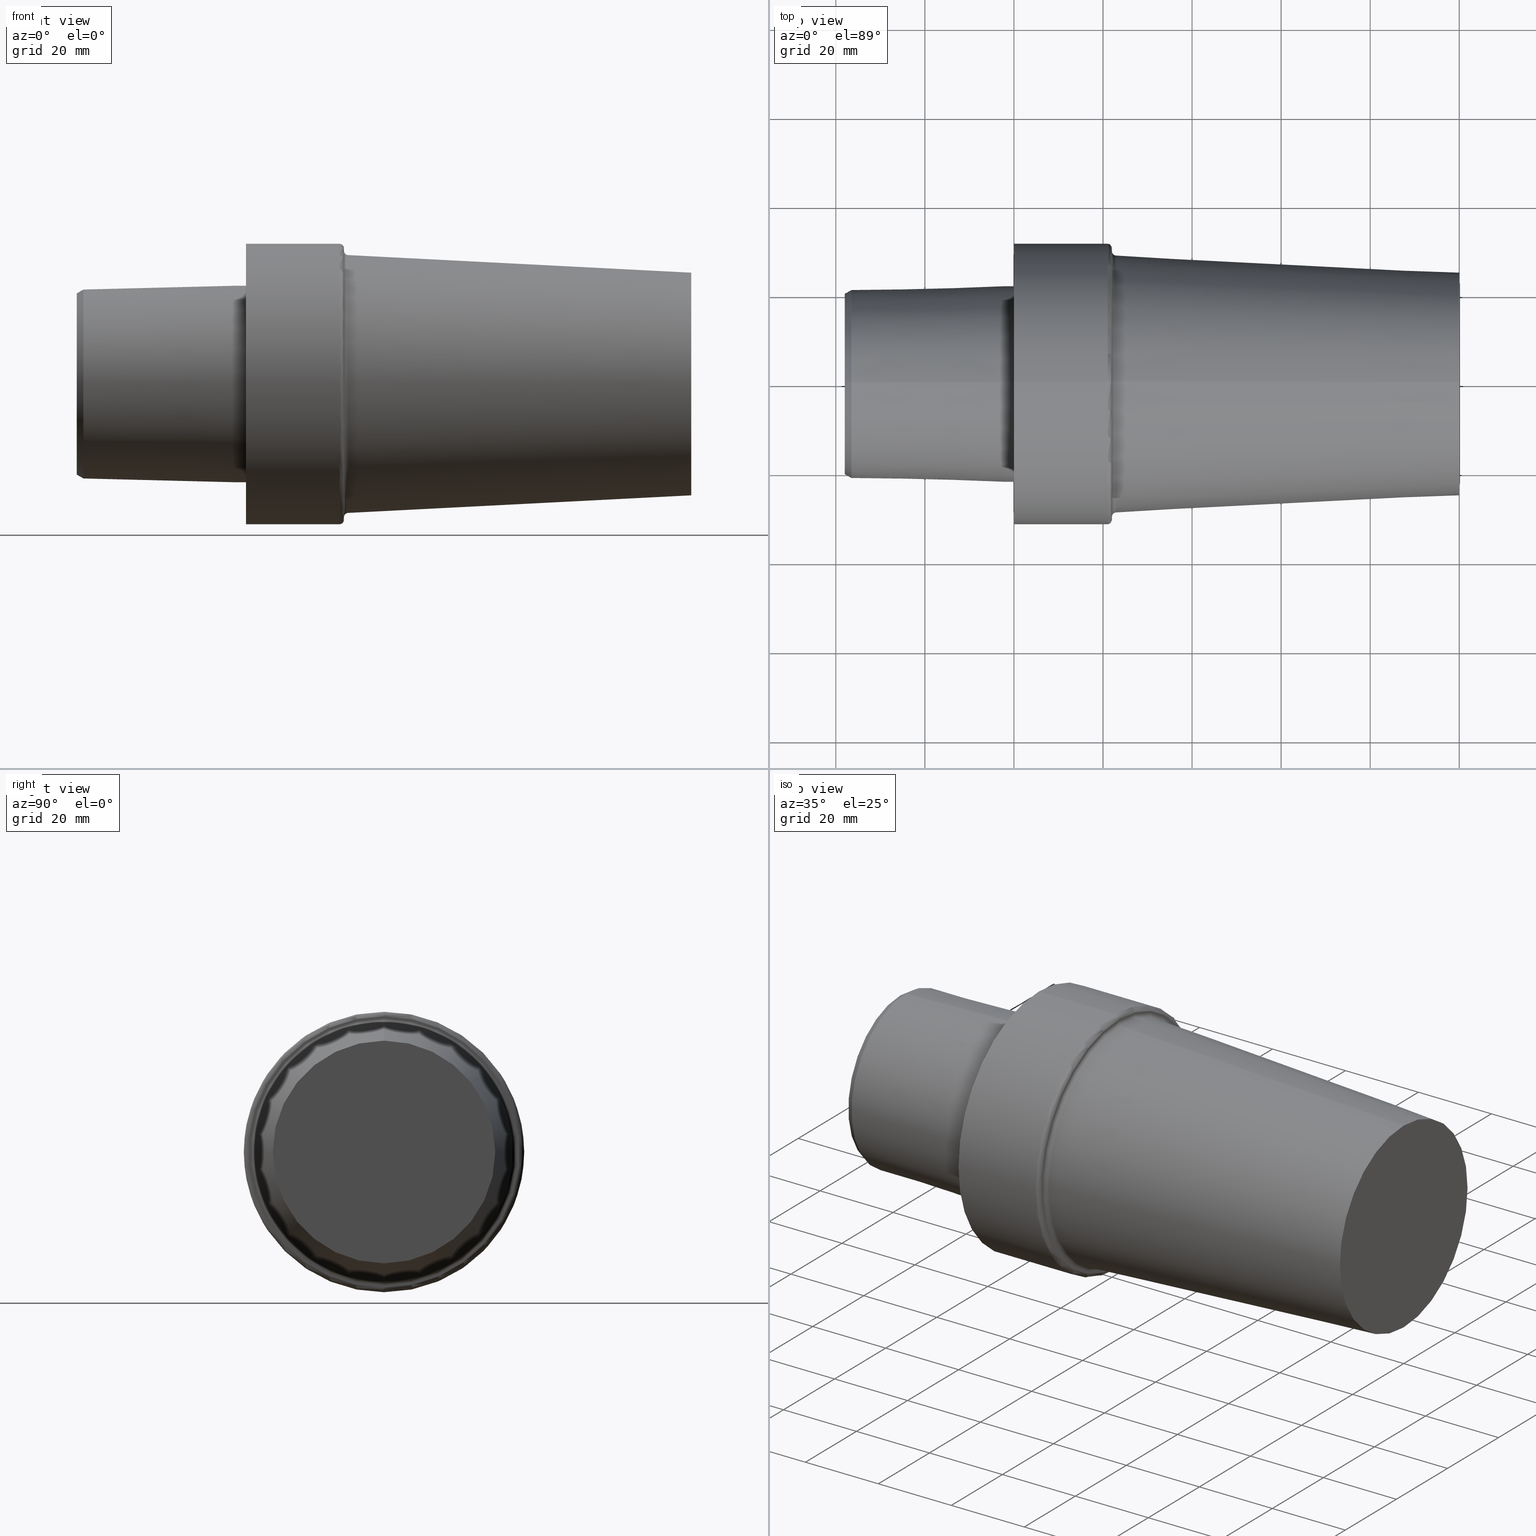
[diagram: canonical four-view strip — front | top / right | iso, engineering-drawing reading convention]
A machine part, canonical four-view strip (front | top / right | iso — engineering-drawing reading convention). The complete STEP part file that produces these views, byte-faithful:
ISO-10303-21;
HEADER;
FILE_DESCRIPTION (( 'STEP AP203' ),
    '1' );
FILE_NAME ('C6-S50-100.stp',
    '2022-03-11T15:34:15',
    ( '' ),
    ( '' ),
    'SwSTEP 2.0',
    'SolidWorks 2021',
    '' );
FILE_SCHEMA (( 'CONFIG_CONTROL_DESIGN' ));
ENDSEC;

DATA;
#1 = DIRECTION ( 'NONE',  ( -0.9986876634740388115, 6.271998213394407980E-18, -0.05121475202287888856 ) ) ;
#2 = CC_DESIGN_DATE_AND_TIME_ASSIGNMENT ( #330, #40, ( #195 ) ) ;
#3 = DIRECTION ( 'NONE',  ( -1.000000000000000000, 0.000000000000000000, 0.000000000000000000 ) ) ;
#4 = SHAPE_DEFINITION_REPRESENTATION ( #403, #454 ) ;
#5 = CARTESIAN_POINT ( 'NONE',  ( -2.199999999394708361, 2.702891790757786195E-15, 22.07078639032614120 ) ) ;
#6 = CALENDAR_DATE ( 2022, 11, 3 ) ;
#7 = FACE_OUTER_BOUND ( 'NONE', #313, .T. ) ;
#8 = CARTESIAN_POINT ( 'NONE',  ( -36.49999996440870120, 2.597885383028215483E-15, 21.21334400120073482 ) ) ;
#9 = CIRCLE ( 'NONE', #79, 22.07078639032614120 ) ;
#10 = VECTOR ( 'NONE', #336, 1000.000000000000114 ) ;
#11 = AXIS2_PLACEMENT_3D ( 'NONE', #304, #143, #481 ) ;
#12 = CARTESIAN_POINT ( 'NONE',  ( 20.99999997694130016, 0.000000000000000000, 31.49249997071599338 ) ) ;
#13 = DIRECTION ( 'NONE',  ( 0.000000000000000000, 0.000000000000000000, 1.000000000000000000 ) ) ;
#14 = LOCAL_TIME ( 9, 34, 15.00000000000000000, #447 ) ;
#15 = DIRECTION ( 'NONE',  ( -1.000000000000000000, 0.000000000000000000, 0.000000000000000000 ) ) ;
#16 = EDGE_LOOP ( 'NONE', ( #124, #269 ) ) ;
#17 = CARTESIAN_POINT ( 'NONE',  ( -1.638711037459195739E-09, 0.000000000000000000, 0.000000000000000000 ) ) ;
#18 = DIRECTION ( 'NONE',  ( 0.000000000000000000, 0.000000000000000000, -1.000000000000000000 ) ) ;
#19 = ORIENTED_EDGE ( 'NONE', *, *, #86, .T. ) ;
#20 =( GEOMETRIC_REPRESENTATION_CONTEXT ( 3 ) GLOBAL_UNCERTAINTY_ASSIGNED_CONTEXT ( ( #298 ) ) GLOBAL_UNIT_ASSIGNED_CONTEXT ( ( #263, #28, #407 ) ) REPRESENTATION_CONTEXT ( 'NONE', 'WORKASPACE' ) );
#21 = EDGE_CURVE ( 'NONE', #157, #488, #273, .T. ) ;
#22 = FACE_OUTER_BOUND ( 'NONE', #159, .T. ) ;
#23 = CARTESIAN_POINT ( 'NONE',  ( 22.99999997490129999, 0.000000000000000000, 29.95003198586706716 ) ) ;
#24 = CIRCLE ( 'NONE', #217, 0.9999999989800008038 ) ;
#25 = EDGE_LOOP ( 'NONE', ( #458, #135, #174, #68 ) ) ;
#26 = CARTESIAN_POINT ( 'NONE',  ( 99.99999989636121711, 0.000000000000000000, 0.000000000000000000 ) ) ;
#27 = ORIENTED_EDGE ( 'NONE', *, *, #278, .F. ) ;
#28 =( NAMED_UNIT ( * ) PLANE_ANGLE_UNIT ( ) SI_UNIT ( $, .RADIAN. ) );
#29 = VERTEX_POINT ( 'NONE', #107 ) ;
#30 = CIRCLE ( 'NONE', #281, 0.9999999989800008038 ) ;
#31 = CONICAL_SURFACE ( 'NONE', #121, 24.99999997733834434, 0.05123716745320494592 ) ;
#32 = ADVANCED_FACE ( 'NONE', ( #366 ), #115, .T. ) ;
#33 = ORIENTED_EDGE ( 'NONE', *, *, #518, .T. ) ;
#34 = CIRCLE ( 'NONE', #532, 29.95003198228931396 ) ;
#35 = VERTEX_POINT ( 'NONE', #44 ) ;
#36 = EDGE_LOOP ( 'NONE', ( #325, #141 ) ) ;
#37 = ADVANCED_FACE ( 'NONE', ( #327 ), #360, .T. ) ;
#38 = CIRCLE ( 'NONE', #226, 22.07078639032614120 ) ;
#39 = CONICAL_SURFACE ( 'NONE', #227, 22.07078639032614120, 0.02499311507610003230 ) ;
#40 = DATE_TIME_ROLE ( 'creation_date' ) ;
#41 = ORIENTED_EDGE ( 'NONE', *, *, #160, .F. ) ;
#42 = AXIS2_PLACEMENT_3D ( 'NONE', #128, #299, #91 ) ;
#43 = PERSON_AND_ORGANIZATION_ROLE ( 'design_owner' ) ;
#44 = CARTESIAN_POINT ( 'NONE',  ( -36.49999996440870120, 0.000000000000000000, -21.21334400120073482 ) ) ;
#45 = EDGE_CURVE ( 'NONE', #375, #377, #117, .T. ) ;
#46 = DIRECTION ( 'NONE',  ( 0.9996876883571774730, 3.060455192797006293E-18, 0.02499051314164881313 ) ) ;
#47 = AXIS2_PLACEMENT_3D ( 'NONE', #496, #111, #208 ) ;
#48 = DIRECTION ( 'NONE',  ( -1.000000000000000000, 0.000000000000000000, 0.000000000000000000 ) ) ;
#49 = LINE ( 'NONE', #379, #10 ) ;
#50 = LINE ( 'NONE', #506, #329 ) ;
#51 = CARTESIAN_POINT ( 'NONE',  ( -37.99999996124000035, 0.000000000000000000, 22.07078639032614120 ) ) ;
#52 = DIRECTION ( 'NONE',  ( -1.000000000000000000, 0.000000000000000000, 0.000000000000000000 ) ) ;
#53 = CIRCLE ( 'NONE', #328, 31.49249997071599338 ) ;
#54 = FACE_OUTER_BOUND ( 'NONE', #433, .T. ) ;
#55 = CARTESIAN_POINT ( 'NONE',  ( -37.99999996124000035, 0.000000000000000000, 0.000000000000000000 ) ) ;
#56 = EDGE_CURVE ( 'NONE', #213, #157, #134, .T. ) ;
#57 = EDGE_LOOP ( 'NONE', ( #497, #148 ) ) ;
#58 = CIRCLE ( 'NONE', #116, 28.95134432330797480 ) ;
#59 = LOCAL_TIME ( 9, 34, 15.00000000000000000, #536 ) ;
#60 = AXIS2_PLACEMENT_3D ( 'NONE', #439, #477, #62 ) ;
#61 = FACE_OUTER_BOUND ( 'NONE', #337, .T. ) ;
#62 = DIRECTION ( 'NONE',  ( 0.000000000000000000, 0.000000000000000000, 1.000000000000000000 ) ) ;
#63 = ORIENTED_EDGE ( 'NONE', *, *, #482, .T. ) ;
#64 = DIRECTION ( 'NONE',  ( -1.000000000000000000, 0.000000000000000000, 0.000000000000000000 ) ) ;
#65 = ORIENTED_EDGE ( 'NONE', *, *, #175, .T. ) ;
#66 = EDGE_CURVE ( 'NONE', #223, #305, #457, .T. ) ;
#67 = DIRECTION ( 'NONE',  ( 0.000000000000000000, 0.000000000000000000, 1.000000000000000000 ) ) ;
#68 = ORIENTED_EDGE ( 'NONE', *, *, #347, .F. ) ;
#69 = AXIS2_PLACEMENT_3D ( 'NONE', #211, #256, #479 ) ;
#70 = APPROVAL_DATE_TIME ( #452, #449 ) ;
#71 = DIRECTION ( 'NONE',  ( 0.000000000000000000, 0.000000000000000000, 1.000000000000000000 ) ) ;
#72 = EDGE_LOOP ( 'NONE', ( #258, #358, #114, #309 ) ) ;
#73 = PERSON_AND_ORGANIZATION ( #221, #153 ) ;
#74 = LOCAL_TIME ( 9, 34, 15.00000000000000000, #204 ) ;
#75 = ORIENTED_EDGE ( 'NONE', *, *, #110, .T. ) ;
#76 = EDGE_CURVE ( 'NONE', #157, #213, #428, .T. ) ;
#77 = PERSON_AND_ORGANIZATION_ROLE ( 'creator' ) ;
#78 = ORIENTED_EDGE ( 'NONE', *, *, #210, .T. ) ;
#79 = AXIS2_PLACEMENT_3D ( 'NONE', #486, #264, #176 ) ;
#80 = AXIS2_PLACEMENT_3D ( 'NONE', #89, #52, #332 ) ;
#81 = PERSON_AND_ORGANIZATION ( #221, #153 ) ;
#82 = CARTESIAN_POINT ( 'NONE',  ( -37.99999996124000035, 0.000000000000000000, 0.000000000000000000 ) ) ;
#83 = AXIS2_PLACEMENT_3D ( 'NONE', #168, #516, #513 ) ;
#84 = DIRECTION ( 'NONE',  ( -1.000000000000000000, 0.000000000000000000, 0.000000000000000000 ) ) ;
#85 = CARTESIAN_POINT ( 'NONE',  ( -37.99999996124000035, 2.544856621203993748E-15, 20.34731859924573172 ) ) ;
#86 = EDGE_CURVE ( 'NONE', #488, #255, #342, .T. ) ;
#87 = LINE ( 'NONE', #511, #93 ) ;
#88 = AXIS2_PLACEMENT_3D ( 'NONE', #324, #498, #193 ) ;
#89 = CARTESIAN_POINT ( 'NONE',  ( 21.99999997592130185, 0.000000000000000000, 0.000000000000000000 ) ) ;
#90 = ADVANCED_FACE ( 'NONE', ( #334 ), #381, .T. ) ;
#91 = DIRECTION ( 'NONE',  ( 0.000000000000000000, 0.000000000000000000, 1.000000000000000000 ) ) ;
#92 = CIRCLE ( 'NONE', #456, 24.99999997733834434 ) ;
#93 = VECTOR ( 'NONE', #418, 1000.000000000000000 ) ;
#94 = EDGE_CURVE ( 'NONE', #156, #395, #58, .T. ) ;
#95 = DIRECTION ( 'NONE',  ( 0.000000000000000000, 0.000000000000000000, 1.000000000000000000 ) ) ;
#96 = DIRECTION ( 'NONE',  ( 0.000000000000000000, 0.000000000000000000, 1.000000000000000000 ) ) ;
#97 = ORIENTED_EDGE ( 'NONE', *, *, #307, .T. ) ;
#98 = CARTESIAN_POINT ( 'NONE',  ( -1.638710153022111881E-09, 31.49249997071599338, 0.000000000000000000 ) ) ;
#99 = DIRECTION ( 'NONE',  ( -1.000000000000000000, 0.000000000000000000, 0.000000000000000000 ) ) ;
#100 = ORIENTED_EDGE ( 'NONE', *, *, #66, .F. ) ;
#101 = LINE ( 'NONE', #493, #361 ) ;
#102 = CIRCLE ( 'NONE', #170, 31.49249997071599338 ) ;
#103 = CARTESIAN_POINT ( 'NONE',  ( 21.99999997592130185, 0.000000000000000000, 0.000000000000000000 ) ) ;
#104 = EDGE_LOOP ( 'NONE', ( #520, #235, #491, #78 ) ) ;
#105 = APPROVAL ( #322, 'UNSPECIFIED' ) ;
#106 = ORIENTED_EDGE ( 'NONE', *, *, #424, .F. ) ;
#107 = CARTESIAN_POINT ( 'NONE',  ( -2.199999999394708361, 0.000000000000000000, 22.07078639032614120 ) ) ;
#108 = APPROVAL_DATE_TIME ( #326, #105 ) ;
#109 = CARTESIAN_POINT ( 'NONE',  ( -1.638711037459195739E-09, 0.000000000000000000, 0.000000000000000000 ) ) ;
#110 = EDGE_CURVE ( 'NONE', #255, #377, #414, .T. ) ;
#111 = DIRECTION ( 'NONE',  ( -1.000000000000000000, 0.000000000000000000, 0.000000000000000000 ) ) ;
#112 = AXIS2_PLACEMENT_3D ( 'NONE', #487, #472, #443 ) ;
#113 = PERSON_AND_ORGANIZATION ( #221, #153 ) ;
#114 = ORIENTED_EDGE ( 'NONE', *, *, #144, .T. ) ;
#115 = CYLINDRICAL_SURFACE ( 'NONE', #282, 22.07078639032614120 ) ;
#116 = AXIS2_PLACEMENT_3D ( 'NONE', #389, #427, #203 ) ;
#117 = LINE ( 'NONE', #528, #420 ) ;
#118 = CIRCLE ( 'NONE', #178, 0.9999999989800008038 ) ;
#119 = ADVANCED_FACE ( 'NONE', ( #300 ), #183, .T. ) ;
#120 = FACE_OUTER_BOUND ( 'NONE', #355, .T. ) ;
#121 = AXIS2_PLACEMENT_3D ( 'NONE', #470, #84, #344 ) ;
#122 = EDGE_CURVE ( 'NONE', #194, #35, #348, .T. ) ;
#123 = FACE_OUTER_BOUND ( 'NONE', #25, .T. ) ;
#124 = ORIENTED_EDGE ( 'NONE', *, *, #56, .F. ) ;
#125 = DATE_AND_TIME ( #335, #202 ) ;
#126 = LINE ( 'NONE', #51, #382 ) ;
#127 = CARTESIAN_POINT ( 'NONE',  ( -1.638711037459195739E-09, 0.000000000000000000, 0.000000000000000000 ) ) ;
#128 = CARTESIAN_POINT ( 'NONE',  ( 22.99999997490129999, 0.000000000000000000, 0.000000000000000000 ) ) ;
#129 = LINE ( 'NONE', #5, #437 ) ;
#130 = ADVANCED_FACE ( 'NONE', ( #120 ), #31, .T. ) ;
#131 = PLANE ( 'NONE',  #338 ) ;
#132 = PLANE ( 'NONE',  #11 ) ;
#133 = CIRCLE ( 'NONE', #349, 22.07078639032614120 ) ;
#134 = CIRCLE ( 'NONE', #47, 30.49249997173599169 ) ;
#135 = ORIENTED_EDGE ( 'NONE', *, *, #296, .T. ) ;
#136 = CIRCLE ( 'NONE', #422, 31.49249997071599338 ) ;
#137 = FACE_BOUND ( 'NONE', #277, .T. ) ;
#138 = CARTESIAN_POINT ( 'NONE',  ( -2.199999999394708361, 0.000000000000000000, 0.000000000000000000 ) ) ;
#139 = EDGE_LOOP ( 'NONE', ( #182, #523, #233, #321 ) ) ;
#140 = CARTESIAN_POINT ( 'NONE',  ( -37.99999996124000035, 0.000000000000000000, -20.34731859924573172 ) ) ;
#141 = ORIENTED_EDGE ( 'NONE', *, *, #410, .F. ) ;
#142 = DIRECTION ( 'NONE',  ( -1.000000000000000000, 0.000000000000000000, 0.000000000000000000 ) ) ;
#143 = DIRECTION ( 'NONE',  ( -1.000000000000000000, 0.000000000000000000, 0.000000000000000000 ) ) ;
#144 = EDGE_CURVE ( 'NONE', #507, #35, #87, .T. ) ;
#145 = AXIS2_PLACEMENT_3D ( 'NONE', #243, #419, #288 ) ;
#146 = ORIENTED_EDGE ( 'NONE', *, *, #296, .F. ) ;
#147 = CC_DESIGN_SECURITY_CLASSIFICATION ( #392, ( #438 ) ) ;
#148 = ORIENTED_EDGE ( 'NONE', *, *, #257, .T. ) ;
#149 = DIRECTION ( 'NONE',  ( -1.000000000000000000, 0.000000000000000000, 0.000000000000000000 ) ) ;
#150 = EDGE_LOOP ( 'NONE', ( #538, #180, #274, #27 ) ) ;
#151 = EDGE_CURVE ( 'NONE', #323, #194, #241, .T. ) ;
#152 = DIRECTION ( 'NONE',  ( -1.000000000000000000, 0.000000000000000000, 0.000000000000000000 ) ) ;
#153 = ORGANIZATION ( 'UNSPECIFIED', 'UNSPECIFIED', '' ) ;
#154 = CARTESIAN_POINT ( 'NONE',  ( -1.638711037459195739E-09, 0.000000000000000000, 22.07078639032614120 ) ) ;
#155 = PRODUCT_RELATED_PRODUCT_CATEGORY ( 'detail', '', ( #185 ) ) ;
#156 = VERTEX_POINT ( 'NONE', #505 ) ;
#157 = VERTEX_POINT ( 'NONE', #468 ) ;
#158 = APPROVAL_STATUS ( 'not_yet_approved' ) ;
#159 = EDGE_LOOP ( 'NONE', ( #517, #75 ) ) ;
#160 = EDGE_CURVE ( 'NONE', #194, #29, #129, .T. ) ;
#161 = CALENDAR_DATE ( 2022, 11, 3 ) ;
#162 = CARTESIAN_POINT ( 'NONE',  ( -36.49999996440870120, 2.650388586893000642E-15, 21.21334400120073482 ) ) ;
#163 = DIRECTION ( 'NONE',  ( 1.000000000000000000, 0.000000000000000000, 0.000000000000000000 ) ) ;
#164 = ADVANCED_FACE ( 'NONE', ( #123 ), #465, .T. ) ;
#165 = DIRECTION ( 'NONE',  ( 0.000000000000000000, 0.000000000000000000, -1.000000000000000000 ) ) ;
#166 = PERSON_AND_ORGANIZATION ( #221, #153 ) ;
#167 = AXIS2_PLACEMENT_3D ( 'NONE', #535, #499, #231 ) ;
#168 = CARTESIAN_POINT ( 'NONE',  ( -37.99999996124000035, 0.000000000000000000, 0.000000000000000000 ) ) ;
#169 = DIRECTION ( 'NONE',  ( -1.000000000000000000, 0.000000000000000000, 0.000000000000000000 ) ) ;
#170 = AXIS2_PLACEMENT_3D ( 'NONE', #462, #426, #207 ) ;
#171 = CARTESIAN_POINT ( 'NONE',  ( 22.94878522495353579, 0.000000000000000000, 28.95134432330797480 ) ) ;
#172 = CARTESIAN_POINT ( 'NONE',  ( -36.49999996440870120, 0.000000000000000000, 0.000000000000000000 ) ) ;
#173 = FACE_OUTER_BOUND ( 'NONE', #261, .T. ) ;
#174 = ORIENTED_EDGE ( 'NONE', *, *, #518, .F. ) ;
#175 = EDGE_CURVE ( 'NONE', #35, #483, #49, .T. ) ;
#176 = DIRECTION ( 'NONE',  ( 0.000000000000000000, 0.000000000000000000, 1.000000000000000000 ) ) ;
#177 = ORIENTED_EDGE ( 'NONE', *, *, #45, .T. ) ;
#178 = AXIS2_PLACEMENT_3D ( 'NONE', #401, #265, #357 ) ;
#179 = FACE_BOUND ( 'NONE', #57, .T. ) ;
#180 = ORIENTED_EDGE ( 'NONE', *, *, #21, .T. ) ;
#181 = EDGE_CURVE ( 'NONE', #275, #156, #50, .T. ) ;
#182 = ORIENTED_EDGE ( 'NONE', *, *, #21, .F. ) ;
#183 = CONICAL_SURFACE ( 'NONE', #501, 21.21334400120073482, 0.5235987755982987046 ) ;
#184 = ORIENTED_EDGE ( 'NONE', *, *, #160, .T. ) ;
#185 = PRODUCT ( 'C6-S50-100', 'C6-S50-100', '', ( #197 ) ) ;
#186 = CONICAL_SURFACE ( 'NONE', #112, 24.99999997733834434, 0.05123716745320494592 ) ;
#187 = ORIENTED_EDGE ( 'NONE', *, *, #86, .F. ) ;
#188 = CC_DESIGN_PERSON_AND_ORGANIZATION_ASSIGNMENT ( #73, #43, ( #185 ) ) ;
#189 = ORIENTED_EDGE ( 'NONE', *, *, #347, .T. ) ;
#190 = PERSON_AND_ORGANIZATION ( #221, #153 ) ;
#191 = ORIENTED_EDGE ( 'NONE', *, *, #500, .T. ) ;
#192 = APPROVAL_PERSON_ORGANIZATION ( #190, #449, #502 ) ;
#193 = DIRECTION ( 'NONE',  ( 1.000000000000000000, 0.000000000000000000, 0.000000000000000000 ) ) ;
#194 = VERTEX_POINT ( 'NONE', #162 ) ;
#195 = PRODUCT_DEFINITION ( 'UNKNOWN', '', #438, #268 ) ;
#196 = ORIENTED_EDGE ( 'NONE', *, *, #110, .F. ) ;
#197 = MECHANICAL_CONTEXT ( 'NONE', #494, 'mechanical' ) ;
#198 = DIRECTION ( 'NONE',  ( -1.000000000000000000, 0.000000000000000000, 0.000000000000000000 ) ) ;
#199 = AXIS2_PLACEMENT_3D ( 'NONE', #283, #527, #369 ) ;
#200 = DIRECTION ( 'NONE',  ( 0.000000000000000000, 0.000000000000000000, 1.000000000000000000 ) ) ;
#201 = ADVANCED_FACE ( 'NONE', ( #291 ), #39, .T. ) ;
#202 = LOCAL_TIME ( 9, 34, 15.00000000000000000, #421 ) ;
#203 = DIRECTION ( 'NONE',  ( 0.000000000000000000, 0.000000000000000000, 1.000000000000000000 ) ) ;
#204 = COORDINATED_UNIVERSAL_TIME_OFFSET ( 6, 0, .BEHIND. ) ;
#205 = CARTESIAN_POINT ( 'NONE',  ( 22.94878522495353579, 0.000000000000000000, 0.000000000000000000 ) ) ;
#206 = AXIS2_PLACEMENT_3D ( 'NONE', #98, #521, #267 ) ;
#207 = DIRECTION ( 'NONE',  ( 0.000000000000000000, 0.000000000000000000, 1.000000000000000000 ) ) ;
#208 = DIRECTION ( 'NONE',  ( 0.000000000000000000, 0.000000000000000000, 1.000000000000000000 ) ) ;
#209 = DIRECTION ( 'NONE',  ( 0.000000000000000000, 0.000000000000000000, 1.000000000000000000 ) ) ;
#210 = EDGE_CURVE ( 'NONE', #395, #156, #473, .T. ) ;
#211 = CARTESIAN_POINT ( 'NONE',  ( 22.99999997490129999, 0.000000000000000000, 0.000000000000000000 ) ) ;
#212 = PLANE ( 'NONE',  #311 ) ;
#213 = VERTEX_POINT ( 'NONE', #435 ) ;
#214 = DIRECTION ( 'NONE',  ( -1.000000000000000000, 0.000000000000000000, 0.000000000000000000 ) ) ;
#215 = CARTESIAN_POINT ( 'NONE',  ( 21.99999997592130185, 0.000000000000000000, 29.95003198407817280 ) ) ;
#216 = VERTEX_POINT ( 'NONE', #215 ) ;
#217 = AXIS2_PLACEMENT_3D ( 'NONE', #23, #354, #18 ) ;
#218 = CARTESIAN_POINT ( 'NONE',  ( -37.99999996124000035, 0.000000000000000000, 0.000000000000000000 ) ) ;
#219 = CARTESIAN_POINT ( 'NONE',  ( 99.99999989636121711, 3.303567055374164118E-15, -24.99999997733834434 ) ) ;
#220 = ORIENTED_EDGE ( 'NONE', *, *, #533, .F. ) ;
#221 = PERSON ( 'UNSPECIFIED', 'UNSPECIFIED', 'UNSPECIFIED', ('UNSPECIFIED'), ('UNSPECIFIED'), ('UNSPECIFIED') ) ;
#222 = CARTESIAN_POINT ( 'NONE',  ( -36.49999996440870120, 0.000000000000000000, 0.000000000000000000 ) ) ;
#223 = VERTEX_POINT ( 'NONE', #351 ) ;
#224 = CYLINDRICAL_SURFACE ( 'NONE', #250, 31.49249997071599338 ) ;
#225 = EDGE_CURVE ( 'NONE', #228, #275, #343, .T. ) ;
#226 = AXIS2_PLACEMENT_3D ( 'NONE', #109, #480, #71 ) ;
#227 = AXIS2_PLACEMENT_3D ( 'NONE', #503, #383, #165 ) ;
#228 = VERTEX_POINT ( 'NONE', #312 ) ;
#229 = PERSON_AND_ORGANIZATION ( #221, #153 ) ;
#230 = DIRECTION ( 'NONE',  ( 0.000000000000000000, 0.000000000000000000, 1.000000000000000000 ) ) ;
#231 = DIRECTION ( 'NONE',  ( 0.000000000000000000, -1.224646799147354193E-16, 1.000000000000000000 ) ) ;
#232 = COORDINATED_UNIVERSAL_TIME_OFFSET ( 6, 0, .BEHIND. ) ;
#233 = ORIENTED_EDGE ( 'NONE', *, *, #278, .T. ) ;
#234 = PERSON_AND_ORGANIZATION ( #221, #153 ) ;
#235 = ORIENTED_EDGE ( 'NONE', *, *, #271, .F. ) ;
#236 = AXIS2_PLACEMENT_3D ( 'NONE', #218, #368, #356 ) ;
#237 = CLOSED_SHELL ( 'NONE', ( #417, #286, #201, #32, #492, #387, #37, #249, #512, #130, #404, #238, #341, #90, #464, #164, #380, #119 ) ) ;
#238 = ADVANCED_FACE ( 'NONE', ( #514 ), #186, .T. ) ;
#239 = PERSON_AND_ORGANIZATION_ROLE ( 'classification_officer' ) ;
#240 = DIRECTION ( 'NONE',  ( -1.000000000000000000, 0.000000000000000000, 0.000000000000000000 ) ) ;
#241 = LINE ( 'NONE', #8, #251 ) ;
#242 = CC_DESIGN_PERSON_AND_ORGANIZATION_ASSIGNMENT ( #229, #77, ( #438 ) ) ;
#243 = CARTESIAN_POINT ( 'NONE',  ( 20.99999997694130016, 0.000000000000000000, 0.000000000000000000 ) ) ;
#244 = DIRECTION ( 'NONE',  ( 0.8660254037844387076, 6.123233995736768501E-17, 0.4999999999999998890 ) ) ;
#245 = VECTOR ( 'NONE', #254, 1000.000000000000000 ) ;
#246 = DIRECTION ( 'NONE',  ( 0.000000000000000000, 0.000000000000000000, 1.000000000000000000 ) ) ;
#247 = CARTESIAN_POINT ( 'NONE',  ( 20.99999997694130016, 0.000000000000000000, 0.000000000000000000 ) ) ;
#248 = DIRECTION ( 'NONE',  ( 0.000000000000000000, 0.000000000000000000, 1.000000000000000000 ) ) ;
#249 = ADVANCED_FACE ( 'NONE', ( #179, #346 ), #132, .F. ) ;
#250 = AXIS2_PLACEMENT_3D ( 'NONE', #320, #408, #67 ) ;
#251 = VECTOR ( 'NONE', #244, 1000.000000000000000 ) ;
#252 = CARTESIAN_POINT ( 'NONE',  ( 99.99999989636121711, 0.000000000000000000, 0.000000000000000000 ) ) ;
#253 = DIRECTION ( 'NONE',  ( -1.000000000000000000, 0.000000000000000000, 0.000000000000000000 ) ) ;
#254 = DIRECTION ( 'NONE',  ( -1.000000000000000000, 0.000000000000000000, 0.000000000000000000 ) ) ;
#255 = VERTEX_POINT ( 'NONE', #308 ) ;
#256 = DIRECTION ( 'NONE',  ( -1.000000000000000000, 0.000000000000000000, 0.000000000000000000 ) ) ;
#257 = EDGE_CURVE ( 'NONE', #444, #216, #34, .T. ) ;
#258 = ORIENTED_EDGE ( 'NONE', *, *, #151, .F. ) ;
#259 = FACE_OUTER_BOUND ( 'NONE', #104, .T. ) ;
#260 = DIRECTION ( 'NONE',  ( 0.000000000000000000, 0.000000000000000000, 1.000000000000000000 ) ) ;
#261 = EDGE_LOOP ( 'NONE', ( #187, #415, #177, #196 ) ) ;
#262 = AXIS2_PLACEMENT_3D ( 'NONE', #138, #284, #519 ) ;
#263 =( LENGTH_UNIT ( ) NAMED_UNIT ( * ) SI_UNIT ( .MILLI., .METRE. ) );
#264 = DIRECTION ( 'NONE',  ( -1.000000000000000000, 0.000000000000000000, 0.000000000000000000 ) ) ;
#265 = DIRECTION ( 'NONE',  ( 0.000000000000000000, -1.000000000000000000, 0.000000000000000000 ) ) ;
#266 = ORIENTED_EDGE ( 'NONE', *, *, #94, .F. ) ;
#267 = DIRECTION ( 'NONE',  ( 0.000000000000000000, 1.000000000000000000, 0.000000000000000000 ) ) ;
#268 = DESIGN_CONTEXT ( 'detailed design', #297, 'design' ) ;
#269 = ORIENTED_EDGE ( 'NONE', *, *, #76, .F. ) ;
#270 = DIRECTION ( 'NONE',  ( 0.000000000000000000, -1.224646799147354193E-16, 1.000000000000000000 ) ) ;
#271 = EDGE_CURVE ( 'NONE', #216, #444, #431, .T. ) ;
#272 = CARTESIAN_POINT ( 'NONE',  ( -36.49999996440870120, 0.000000000000000000, 0.000000000000000000 ) ) ;
#273 = CIRCLE ( 'NONE', #167, 0.9999999989800008038 ) ;
#274 = ORIENTED_EDGE ( 'NONE', *, *, #362, .F. ) ;
#275 = VERTEX_POINT ( 'NONE', #219 ) ;
#276 = CALENDAR_DATE ( 2022, 11, 3 ) ;
#277 = EDGE_LOOP ( 'NONE', ( #106, #100 ) ) ;
#278 = EDGE_CURVE ( 'NONE', #213, #375, #118, .T. ) ;
#279 = APPROVAL_ROLE ( '' ) ;
#280 = ORIENTED_EDGE ( 'NONE', *, *, #370, .F. ) ;
#281 = AXIS2_PLACEMENT_3D ( 'NONE', #526, #306, #270 ) ;
#282 = AXIS2_PLACEMENT_3D ( 'NONE', #82, #240, #416 ) ;
#283 = CARTESIAN_POINT ( 'NONE',  ( 20.99999997694130016, 0.000000000000000000, 0.000000000000000000 ) ) ;
#284 = DIRECTION ( 'NONE',  ( 1.000000000000000000, 0.000000000000000000, 0.000000000000000000 ) ) ;
#285 = APPROVAL_ROLE ( '' ) ;
#286 = ADVANCED_FACE ( 'NONE', ( #430 ), #374, .T. ) ;
#287 = CARTESIAN_POINT ( 'NONE',  ( -36.49999996440870120, 0.000000000000000000, 0.000000000000000000 ) ) ;
#288 = DIRECTION ( 'NONE',  ( 0.000000000000000000, 0.000000000000000000, 1.000000000000000000 ) ) ;
#289 = APPROVAL_DATE_TIME ( #125, #537 ) ;
#290 = CC_DESIGN_APPROVAL ( #105, ( #195 ) ) ;
#291 = FACE_OUTER_BOUND ( 'NONE', #398, .T. ) ;
#292 = AXIS2_PLACEMENT_3D ( 'NONE', #26, #64, #260 ) ;
#293 = ORIENTED_EDGE ( 'NONE', *, *, #210, .F. ) ;
#294 = CYLINDRICAL_SURFACE ( 'NONE', #83, 31.49249997071599338 ) ;
#295 = CARTESIAN_POINT ( 'NONE',  ( -37.99999996124000035, 0.000000000000000000, 0.000000000000000000 ) ) ;
#296 = EDGE_CURVE ( 'NONE', #223, #483, #371, .T. ) ;
#297 = APPLICATION_CONTEXT ( 'configuration controlled 3d designs of mechanical parts and assemblies' ) ;
#298 = UNCERTAINTY_MEASURE_WITH_UNIT (LENGTH_MEASURE( 1.000000000000000082E-05 ), #263, 'distance_accuracy_value', 'NONE');
#299 = DIRECTION ( 'NONE',  ( -1.000000000000000000, 0.000000000000000000, 0.000000000000000000 ) ) ;
#300 = FACE_OUTER_BOUND ( 'NONE', #436, .T. ) ;
#301 = CIRCLE ( 'NONE', #236, 20.34731859924573172 ) ;
#302 = AXIS2_PLACEMENT_3D ( 'NONE', #463, #169, #248 ) ;
#303 = DIRECTION ( 'NONE',  ( 0.000000000000000000, 0.000000000000000000, 1.000000000000000000 ) ) ;
#304 = CARTESIAN_POINT ( 'NONE',  ( 21.99999997592130185, 30.49249997173599169, 0.000000000000000000 ) ) ;
#305 = VERTEX_POINT ( 'NONE', #154 ) ;
#306 = DIRECTION ( 'NONE',  ( 0.000000000000000000, 1.000000000000000000, 1.224646799147355919E-16 ) ) ;
#307 = EDGE_CURVE ( 'NONE', #323, #507, #331, .T. ) ;
#308 = CARTESIAN_POINT ( 'NONE',  ( -1.638711037459195739E-09, 3.856718928628543502E-15, -31.49249997071599338 ) ) ;
#309 = ORIENTED_EDGE ( 'NONE', *, *, #442, .T. ) ;
#310 = ORIENTED_EDGE ( 'NONE', *, *, #410, .T. ) ;
#311 = AXIS2_PLACEMENT_3D ( 'NONE', #365, #445, #400 ) ;
#312 = CARTESIAN_POINT ( 'NONE',  ( 99.99999989636121711, 0.000000000000000000, 24.99999997733834434 ) ) ;
#313 = EDGE_LOOP ( 'NONE', ( #531, #191, #373, #280 ) ) ;
#314 = TOROIDAL_SURFACE ( 'NONE', #42, 29.95003198586706716, 0.9999999989799999156 ) ;
#315 = CARTESIAN_POINT ( 'NONE',  ( -2.199999999394708361, 2.702891790757786195E-15, -22.07078639032614120 ) ) ;
#316 = CC_DESIGN_APPROVAL ( #537, ( #392 ) ) ;
#317 = DIRECTION ( 'NONE',  ( -1.000000000000000000, 0.000000000000000000, 0.000000000000000000 ) ) ;
#318 = ORIENTED_EDGE ( 'NONE', *, *, #151, .T. ) ;
#319 = ORIENTED_EDGE ( 'NONE', *, *, #504, .F. ) ;
#320 = CARTESIAN_POINT ( 'NONE',  ( -37.99999996124000035, 0.000000000000000000, 0.000000000000000000 ) ) ;
#321 = ORIENTED_EDGE ( 'NONE', *, *, #394, .F. ) ;
#322 = APPROVAL_STATUS ( 'not_yet_approved' ) ;
#323 = VERTEX_POINT ( 'NONE', #85 ) ;
#324 = CARTESIAN_POINT ( 'NONE',  ( 0.000000000000000000, 0.000000000000000000, 0.000000000000000000 ) ) ;
#325 = ORIENTED_EDGE ( 'NONE', *, *, #225, .F. ) ;
#326 = DATE_AND_TIME ( #539, #530 ) ;
#327 = FACE_OUTER_BOUND ( 'NONE', #139, .T. ) ;
#328 = AXIS2_PLACEMENT_3D ( 'NONE', #17, #149, #96 ) ;
#329 = VECTOR ( 'NONE', #1, 1000.000000000000000 ) ;
#330 = DATE_AND_TIME ( #161, #59 ) ;
#331 = CIRCLE ( 'NONE', #441, 20.34731859924573172 ) ;
#332 = DIRECTION ( 'NONE',  ( 0.000000000000000000, 0.000000000000000000, 1.000000000000000000 ) ) ;
#333 = CC_DESIGN_PERSON_AND_ORGANIZATION_ASSIGNMENT ( #234, #413, ( #438 ) ) ;
#334 = FACE_OUTER_BOUND ( 'NONE', #150, .T. ) ;
#335 = CALENDAR_DATE ( 2022, 11, 3 ) ;
#336 = DIRECTION ( 'NONE',  ( 0.9996876883571774730, 0.000000000000000000, -0.02499051314164881313 ) ) ;
#337 = EDGE_LOOP ( 'NONE', ( #352, #19, #319, #412 ) ) ;
#338 = AXIS2_PLACEMENT_3D ( 'NONE', #252, #429, #209 ) ;
#339 = VECTOR ( 'NONE', #425, 1000.000000000000000 ) ;
#340 = FACE_OUTER_BOUND ( 'NONE', #476, .T. ) ;
#341 = ADVANCED_FACE ( 'NONE', ( #7 ), #314, .F. ) ;
#342 = LINE ( 'NONE', #510, #339 ) ;
#343 = CIRCLE ( 'NONE', #292, 24.99999997733834434 ) ;
#344 = DIRECTION ( 'NONE',  ( 0.000000000000000000, 0.000000000000000000, 1.000000000000000000 ) ) ;
#345 = DATE_TIME_ROLE ( 'classification_date' ) ;
#346 = FACE_OUTER_BOUND ( 'NONE', #16, .T. ) ;
#347 = EDGE_CURVE ( 'NONE', #305, #29, #126, .T. ) ;
#348 = CIRCLE ( 'NONE', #372, 21.21334400120073482 ) ;
#349 = AXIS2_PLACEMENT_3D ( 'NONE', #489, #142, #350 ) ;
#350 = DIRECTION ( 'NONE',  ( 0.000000000000000000, 0.000000000000000000, 1.000000000000000000 ) ) ;
#351 = CARTESIAN_POINT ( 'NONE',  ( -1.638711037459195739E-09, 2.702891790757786195E-15, -22.07078639032614120 ) ) ;
#352 = ORIENTED_EDGE ( 'NONE', *, *, #362, .T. ) ;
#353 = PLANE ( 'NONE',  #206 ) ;
#354 = DIRECTION ( 'NONE',  ( 0.000000000000000000, -1.000000000000000000, 0.000000000000000000 ) ) ;
#355 = EDGE_LOOP ( 'NONE', ( #440, #310, #515, #266 ) ) ;
#356 = DIRECTION ( 'NONE',  ( 0.000000000000000000, 0.000000000000000000, 1.000000000000000000 ) ) ;
#357 = DIRECTION ( 'NONE',  ( 0.000000000000000000, 0.000000000000000000, -1.000000000000000000 ) ) ;
#358 = ORIENTED_EDGE ( 'NONE', *, *, #474, .F. ) ;
#359 = TOROIDAL_SURFACE ( 'NONE', #69, 29.95003198586706716, 0.9999999989799999156 ) ;
#360 = TOROIDAL_SURFACE ( 'NONE', #199, 30.49249997173599169, 0.9999999989799999156 ) ;
#361 = VECTOR ( 'NONE', #364, 1000.000000000000000 ) ;
#362 = EDGE_CURVE ( 'NONE', #375, #488, #136, .T. ) ;
#363 = ORIENTED_EDGE ( 'NONE', *, *, #122, .T. ) ;
#364 = DIRECTION ( 'NONE',  ( -0.9986876634740388115, 0.000000000000000000, 0.05121475202287888856 ) ) ;
#365 = CARTESIAN_POINT ( 'NONE',  ( -37.99999996124000035, 20.34731859924573172, 0.000000000000000000 ) ) ;
#366 = FACE_OUTER_BOUND ( 'NONE', #409, .T. ) ;
#367 = PERSON_AND_ORGANIZATION ( #221, #153 ) ;
#368 = DIRECTION ( 'NONE',  ( -1.000000000000000000, 0.000000000000000000, 0.000000000000000000 ) ) ;
#369 = DIRECTION ( 'NONE',  ( 0.000000000000000000, 0.000000000000000000, 1.000000000000000000 ) ) ;
#370 = EDGE_CURVE ( 'NONE', #216, #395, #24, .T. ) ;
#371 = LINE ( 'NONE', #529, #245 ) ;
#372 = AXIS2_PLACEMENT_3D ( 'NONE', #287, #48, #386 ) ;
#373 = ORIENTED_EDGE ( 'NONE', *, *, #94, .T. ) ;
#374 = CONICAL_SURFACE ( 'NONE', #508, 21.21334400120073482, 0.5235987755982987046 ) ;
#375 = VERTEX_POINT ( 'NONE', #12 ) ;
#376 = APPLICATION_PROTOCOL_DEFINITION ( 'international standard', 'config_control_design', 1994, #494 ) ;
#377 = VERTEX_POINT ( 'NONE', #509 ) ;
#378 = APPLICATION_PROTOCOL_DEFINITION ( 'international standard', 'config_control_design', 1994, #297 ) ;
#379 = CARTESIAN_POINT ( 'NONE',  ( -2.199999999394708361, 0.000000000000000000, -22.07078639032614120 ) ) ;
#380 = ADVANCED_FACE ( 'NONE', ( #340 ), #399, .T. ) ;
#381 = TOROIDAL_SURFACE ( 'NONE', #145, 30.49249997173599169, 0.9999999989799999156 ) ;
#382 = VECTOR ( 'NONE', #434, 1000.000000000000000 ) ;
#383 = DIRECTION ( 'NONE',  ( 1.000000000000000000, 0.000000000000000000, 0.000000000000000000 ) ) ;
#384 = CC_DESIGN_PERSON_AND_ORGANIZATION_ASSIGNMENT ( #81, #239, ( #392 ) ) ;
#385 = APPROVAL_STATUS ( 'not_yet_approved' ) ;
#386 = DIRECTION ( 'NONE',  ( 0.000000000000000000, 0.000000000000000000, 1.000000000000000000 ) ) ;
#387 = ADVANCED_FACE ( 'NONE', ( #173 ), #294, .T. ) ;
#388 = DIRECTION ( 'NONE',  ( 0.000000000000000000, 0.000000000000000000, 1.000000000000000000 ) ) ;
#389 = CARTESIAN_POINT ( 'NONE',  ( 22.94878522495353579, 0.000000000000000000, 0.000000000000000000 ) ) ;
#390 = DIRECTION ( 'NONE',  ( -1.000000000000000000, 0.000000000000000000, 0.000000000000000000 ) ) ;
#391 = DATE_AND_TIME ( #6, #74 ) ;
#392 = SECURITY_CLASSIFICATION ( '', '', #455 ) ;
#393 = CARTESIAN_POINT ( 'NONE',  ( 99.99999989636121711, 0.000000000000000000, 0.000000000000000000 ) ) ;
#394 = EDGE_CURVE ( 'NONE', #488, #375, #102, .T. ) ;
#395 = VERTEX_POINT ( 'NONE', #171 ) ;
#396 = CARTESIAN_POINT ( 'NONE',  ( 20.99999997694130016, 3.856718928628543502E-15, -31.49249997071599338 ) ) ;
#397 = ORIENTED_EDGE ( 'NONE', *, *, #225, .T. ) ;
#398 = EDGE_LOOP ( 'NONE', ( #41, #446, #65, #63 ) ) ;
#399 = CONICAL_SURFACE ( 'NONE', #262, 22.07078639032614120, 0.02499311507610003230 ) ;
#400 = DIRECTION ( 'NONE',  ( 0.000000000000000000, 1.000000000000000000, 0.000000000000000000 ) ) ;
#401 = CARTESIAN_POINT ( 'NONE',  ( 20.99999997694130016, 0.000000000000000000, 30.49249997173599169 ) ) ;
#402 = ORIENTED_EDGE ( 'NONE', *, *, #181, .T. ) ;
#403 = PRODUCT_DEFINITION_SHAPE ( 'NONE', 'NONE',  #195 ) ;
#404 = ADVANCED_FACE ( 'NONE', ( #471 ), #131, .F. ) ;
#405 = DIRECTION ( 'NONE',  ( 0.000000000000000000, 0.000000000000000000, -1.000000000000000000 ) ) ;
#406 = ORIENTED_EDGE ( 'NONE', *, *, #144, .F. ) ;
#407 =( NAMED_UNIT ( * ) SI_UNIT ( $, .STERADIAN. ) SOLID_ANGLE_UNIT ( ) );
#408 = DIRECTION ( 'NONE',  ( -1.000000000000000000, 0.000000000000000000, 0.000000000000000000 ) ) ;
#409 = EDGE_LOOP ( 'NONE', ( #146, #478, #189, #469 ) ) ;
#410 = EDGE_CURVE ( 'NONE', #275, #228, #92, .T. ) ;
#411 = PERSON_AND_ORGANIZATION_ROLE ( 'creator' ) ;
#412 = ORIENTED_EDGE ( 'NONE', *, *, #45, .F. ) ;
#413 = PERSON_AND_ORGANIZATION_ROLE ( 'design_supplier' ) ;
#414 = CIRCLE ( 'NONE', #524, 31.49249997071599338 ) ;
#415 = ORIENTED_EDGE ( 'NONE', *, *, #394, .T. ) ;
#416 = DIRECTION ( 'NONE',  ( 0.000000000000000000, 0.000000000000000000, 1.000000000000000000 ) ) ;
#417 = ADVANCED_FACE ( 'NONE', ( #54 ), #212, .F. ) ;
#418 = DIRECTION ( 'NONE',  ( 0.8660254037844387076, 0.000000000000000000, -0.4999999999999998890 ) ) ;
#419 = DIRECTION ( 'NONE',  ( -1.000000000000000000, 0.000000000000000000, 0.000000000000000000 ) ) ;
#420 = VECTOR ( 'NONE', #152, 1000.000000000000000 ) ;
#421 = COORDINATED_UNIVERSAL_TIME_OFFSET ( 6, 0, .BEHIND. ) ;
#422 = AXIS2_PLACEMENT_3D ( 'NONE', #247, #15, #303 ) ;
#423 = DIRECTION ( 'NONE',  ( 0.000000000000000000, 0.000000000000000000, -1.000000000000000000 ) ) ;
#424 = EDGE_CURVE ( 'NONE', #305, #223, #38, .T. ) ;
#425 = DIRECTION ( 'NONE',  ( -1.000000000000000000, 0.000000000000000000, 0.000000000000000000 ) ) ;
#426 = DIRECTION ( 'NONE',  ( -1.000000000000000000, 0.000000000000000000, 0.000000000000000000 ) ) ;
#427 = DIRECTION ( 'NONE',  ( -1.000000000000000000, 0.000000000000000000, 0.000000000000000000 ) ) ;
#428 = CIRCLE ( 'NONE', #80, 30.49249997173599169 ) ;
#429 = DIRECTION ( 'NONE',  ( -1.000000000000000000, 0.000000000000000000, 0.000000000000000000 ) ) ;
#430 = FACE_OUTER_BOUND ( 'NONE', #72, .T. ) ;
#431 = CIRCLE ( 'NONE', #60, 29.95003198228931396 ) ;
#432 = DIRECTION ( 'NONE',  ( 0.000000000000000000, 0.000000000000000000, 1.000000000000000000 ) ) ;
#433 = EDGE_LOOP ( 'NONE', ( #451, #97 ) ) ;
#434 = DIRECTION ( 'NONE',  ( -1.000000000000000000, 0.000000000000000000, 0.000000000000000000 ) ) ;
#435 = CARTESIAN_POINT ( 'NONE',  ( 21.99999997592130185, 0.000000000000000000, 30.49249997173599169 ) ) ;
#436 = EDGE_LOOP ( 'NONE', ( #525, #318, #363, #406 ) ) ;
#437 = VECTOR ( 'NONE', #46, 1000.000000000000114 ) ;
#438 = PRODUCT_DEFINITION_FORMATION_WITH_SPECIFIED_SOURCE ( 'ANY', '', #185, .NOT_KNOWN. ) ;
#439 = CARTESIAN_POINT ( 'NONE',  ( 21.99999997592130185, 0.000000000000000000, 0.000000000000000000 ) ) ;
#440 = ORIENTED_EDGE ( 'NONE', *, *, #181, .F. ) ;
#441 = AXIS2_PLACEMENT_3D ( 'NONE', #55, #214, #388 ) ;
#442 = EDGE_CURVE ( 'NONE', #35, #194, #484, .T. ) ;
#443 = DIRECTION ( 'NONE',  ( 0.000000000000000000, 0.000000000000000000, 1.000000000000000000 ) ) ;
#444 = VERTEX_POINT ( 'NONE', #490 ) ;
#445 = DIRECTION ( 'NONE',  ( 1.000000000000000000, 0.000000000000000000, 0.000000000000000000 ) ) ;
#446 = ORIENTED_EDGE ( 'NONE', *, *, #442, .F. ) ;
#447 = COORDINATED_UNIVERSAL_TIME_OFFSET ( 6, 0, .BEHIND. ) ;
#448 = AXIS2_PLACEMENT_3D ( 'NONE', #272, #317, #230 ) ;
#449 = APPROVAL ( #158, 'UNSPECIFIED' ) ;
#450 = APPROVAL_PERSON_ORGANIZATION ( #166, #537, #285 ) ;
#451 = ORIENTED_EDGE ( 'NONE', *, *, #474, .T. ) ;
#452 = DATE_AND_TIME ( #276, #14 ) ;
#453 = ORIENTED_EDGE ( 'NONE', *, *, #175, .F. ) ;
#454 = ADVANCED_BREP_SHAPE_REPRESENTATION ( 'C6-S50-100', ( #460, #88 ), #20 ) ;
#455 = SECURITY_CLASSIFICATION_LEVEL ( 'unclassified' ) ;
#456 = AXIS2_PLACEMENT_3D ( 'NONE', #393, #253, #432 ) ;
#457 = CIRCLE ( 'NONE', #302, 22.07078639032614120 ) ;
#458 = ORIENTED_EDGE ( 'NONE', *, *, #424, .T. ) ;
#459 = CC_DESIGN_PERSON_AND_ORGANIZATION_ASSIGNMENT ( #113, #411, ( #195 ) ) ;
#460 = MANIFOLD_SOLID_BREP ( 'Scale1', #237 ) ;
#461 = ORIENTED_EDGE ( 'NONE', *, *, #122, .F. ) ;
#462 = CARTESIAN_POINT ( 'NONE',  ( 20.99999997694130016, 0.000000000000000000, 0.000000000000000000 ) ) ;
#463 = CARTESIAN_POINT ( 'NONE',  ( -1.638711037459195739E-09, 0.000000000000000000, 0.000000000000000000 ) ) ;
#464 = ADVANCED_FACE ( 'NONE', ( #61 ), #224, .T. ) ;
#465 = CYLINDRICAL_SURFACE ( 'NONE', #485, 22.07078639032614120 ) ;
#466 = APPROVAL_PERSON_ORGANIZATION ( #367, #105, #279 ) ;
#467 = AXIS2_PLACEMENT_3D ( 'NONE', #205, #3, #246 ) ;
#468 = CARTESIAN_POINT ( 'NONE',  ( 21.99999997592130185, 3.795486588733635568E-15, -30.49249997173599169 ) ) ;
#469 = ORIENTED_EDGE ( 'NONE', *, *, #482, .F. ) ;
#470 = CARTESIAN_POINT ( 'NONE',  ( 99.99999989636121711, 0.000000000000000000, 0.000000000000000000 ) ) ;
#471 = FACE_OUTER_BOUND ( 'NONE', #36, .T. ) ;
#472 = DIRECTION ( 'NONE',  ( -1.000000000000000000, 0.000000000000000000, 0.000000000000000000 ) ) ;
#473 = CIRCLE ( 'NONE', #467, 28.95134432330797480 ) ;
#474 = EDGE_CURVE ( 'NONE', #507, #323, #301, .T. ) ;
#475 = DIRECTION ( 'NONE',  ( 1.000000000000000000, 0.000000000000000000, 0.000000000000000000 ) ) ;
#476 = EDGE_LOOP ( 'NONE', ( #461, #184, #33, #453 ) ) ;
#477 = DIRECTION ( 'NONE',  ( -1.000000000000000000, 0.000000000000000000, 0.000000000000000000 ) ) ;
#478 = ORIENTED_EDGE ( 'NONE', *, *, #66, .T. ) ;
#479 = DIRECTION ( 'NONE',  ( 0.000000000000000000, 0.000000000000000000, 1.000000000000000000 ) ) ;
#480 = DIRECTION ( 'NONE',  ( -1.000000000000000000, 0.000000000000000000, 0.000000000000000000 ) ) ;
#481 = DIRECTION ( 'NONE',  ( 0.000000000000000000, 0.000000000000000000, 1.000000000000000000 ) ) ;
#482 = EDGE_CURVE ( 'NONE', #483, #29, #9, .T. ) ;
#483 = VERTEX_POINT ( 'NONE', #315 ) ;
#484 = CIRCLE ( 'NONE', #448, 21.21334400120073482 ) ;
#485 = AXIS2_PLACEMENT_3D ( 'NONE', #295, #198, #200 ) ;
#486 = CARTESIAN_POINT ( 'NONE',  ( -2.199999999394708361, 0.000000000000000000, 0.000000000000000000 ) ) ;
#487 = CARTESIAN_POINT ( 'NONE',  ( 99.99999989636121711, 0.000000000000000000, 0.000000000000000000 ) ) ;
#488 = VERTEX_POINT ( 'NONE', #396 ) ;
#489 = CARTESIAN_POINT ( 'NONE',  ( -2.199999999394708361, 0.000000000000000000, 0.000000000000000000 ) ) ;
#490 = CARTESIAN_POINT ( 'NONE',  ( 21.99999997592130185, 3.667821080366219517E-15, -29.95003198407817280 ) ) ;
#491 = ORIENTED_EDGE ( 'NONE', *, *, #370, .T. ) ;
#492 = ADVANCED_FACE ( 'NONE', ( #137, #22 ), #353, .F. ) ;
#493 = CARTESIAN_POINT ( 'NONE',  ( 99.99999989636121711, 0.000000000000000000, 24.99999997733834434 ) ) ;
#494 = APPLICATION_CONTEXT ( 'configuration controlled 3d designs of mechanical parts and assemblies' ) ;
#495 = EDGE_LOOP ( 'NONE', ( #397, #402, #293, #220 ) ) ;
#496 = CARTESIAN_POINT ( 'NONE',  ( 21.99999997592130185, 0.000000000000000000, 0.000000000000000000 ) ) ;
#497 = ORIENTED_EDGE ( 'NONE', *, *, #271, .T. ) ;
#498 = DIRECTION ( 'NONE',  ( 0.000000000000000000, 0.000000000000000000, 1.000000000000000000 ) ) ;
#499 = DIRECTION ( 'NONE',  ( 0.000000000000000000, 1.000000000000000000, 1.224646799147355919E-16 ) ) ;
#500 = EDGE_CURVE ( 'NONE', #444, #156, #30, .T. ) ;
#501 = AXIS2_PLACEMENT_3D ( 'NONE', #172, #163, #423 ) ;
#502 = APPROVAL_ROLE ( '' ) ;
#503 = CARTESIAN_POINT ( 'NONE',  ( -2.199999999394708361, 0.000000000000000000, 0.000000000000000000 ) ) ;
#504 = EDGE_CURVE ( 'NONE', #377, #255, #53, .T. ) ;
#505 = CARTESIAN_POINT ( 'NONE',  ( 22.94878522495353579, 3.545517115655198089E-15, -28.95134432330797480 ) ) ;
#506 = CARTESIAN_POINT ( 'NONE',  ( 99.99999989636121711, 3.061616995093130146E-15, -24.99999997733834434 ) ) ;
#507 = VERTEX_POINT ( 'NONE', #140 ) ;
#508 = AXIS2_PLACEMENT_3D ( 'NONE', #222, #475, #405 ) ;
#509 = CARTESIAN_POINT ( 'NONE',  ( -1.638711037459195739E-09, 0.000000000000000000, 31.49249997071599338 ) ) ;
#510 = CARTESIAN_POINT ( 'NONE',  ( -37.99999996124000035, 3.856718928628543502E-15, -31.49249997071599338 ) ) ;
#511 = CARTESIAN_POINT ( 'NONE',  ( -36.49999996440870120, 0.000000000000000000, -21.21334400120073482 ) ) ;
#512 = ADVANCED_FACE ( 'NONE', ( #259 ), #359, .F. ) ;
#513 = DIRECTION ( 'NONE',  ( 0.000000000000000000, 0.000000000000000000, 1.000000000000000000 ) ) ;
#514 = FACE_OUTER_BOUND ( 'NONE', #495, .T. ) ;
#515 = ORIENTED_EDGE ( 'NONE', *, *, #533, .T. ) ;
#516 = DIRECTION ( 'NONE',  ( -1.000000000000000000, 0.000000000000000000, 0.000000000000000000 ) ) ;
#517 = ORIENTED_EDGE ( 'NONE', *, *, #504, .T. ) ;
#518 = EDGE_CURVE ( 'NONE', #29, #483, #133, .T. ) ;
#519 = DIRECTION ( 'NONE',  ( 0.000000000000000000, 0.000000000000000000, -1.000000000000000000 ) ) ;
#520 = ORIENTED_EDGE ( 'NONE', *, *, #500, .F. ) ;
#521 = DIRECTION ( 'NONE',  ( 1.000000000000000000, 0.000000000000000000, 0.000000000000000000 ) ) ;
#522 = CC_DESIGN_DATE_AND_TIME_ASSIGNMENT ( #391, #345, ( #392 ) ) ;
#523 = ORIENTED_EDGE ( 'NONE', *, *, #76, .T. ) ;
#524 = AXIS2_PLACEMENT_3D ( 'NONE', #127, #390, #13 ) ;
#525 = ORIENTED_EDGE ( 'NONE', *, *, #307, .F. ) ;
#526 = CARTESIAN_POINT ( 'NONE',  ( 22.99999997490129999, 3.667821080585294079E-15, -29.95003198586706716 ) ) ;
#527 = DIRECTION ( 'NONE',  ( -1.000000000000000000, 0.000000000000000000, 0.000000000000000000 ) ) ;
#528 = CARTESIAN_POINT ( 'NONE',  ( -37.99999996124000035, 0.000000000000000000, 31.49249997071599338 ) ) ;
#529 = CARTESIAN_POINT ( 'NONE',  ( -37.99999996124000035, 2.702891790757786195E-15, -22.07078639032614120 ) ) ;
#530 = LOCAL_TIME ( 9, 34, 15.00000000000000000, #232 ) ;
#531 = ORIENTED_EDGE ( 'NONE', *, *, #257, .F. ) ;
#532 = AXIS2_PLACEMENT_3D ( 'NONE', #103, #99, #95 ) ;
#533 = EDGE_CURVE ( 'NONE', #228, #395, #101, .T. ) ;
#534 = CC_DESIGN_APPROVAL ( #449, ( #438 ) ) ;
#535 = CARTESIAN_POINT ( 'NONE',  ( 20.99999997694130016, 3.734254248838722111E-15, -30.49249997173599169 ) ) ;
#536 = COORDINATED_UNIVERSAL_TIME_OFFSET ( 6, 0, .BEHIND. ) ;
#537 = APPROVAL ( #385, 'UNSPECIFIED' ) ;
#538 = ORIENTED_EDGE ( 'NONE', *, *, #56, .T. ) ;
#539 = CALENDAR_DATE ( 2022, 11, 3 ) ;
ENDSEC;
END-ISO-10303-21;
